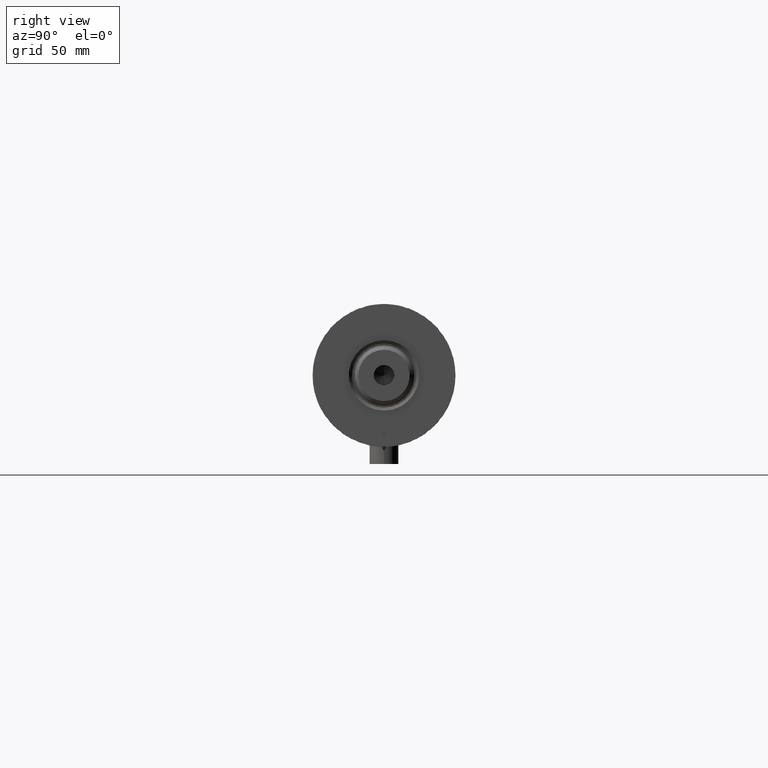
[diagram: clean part render]
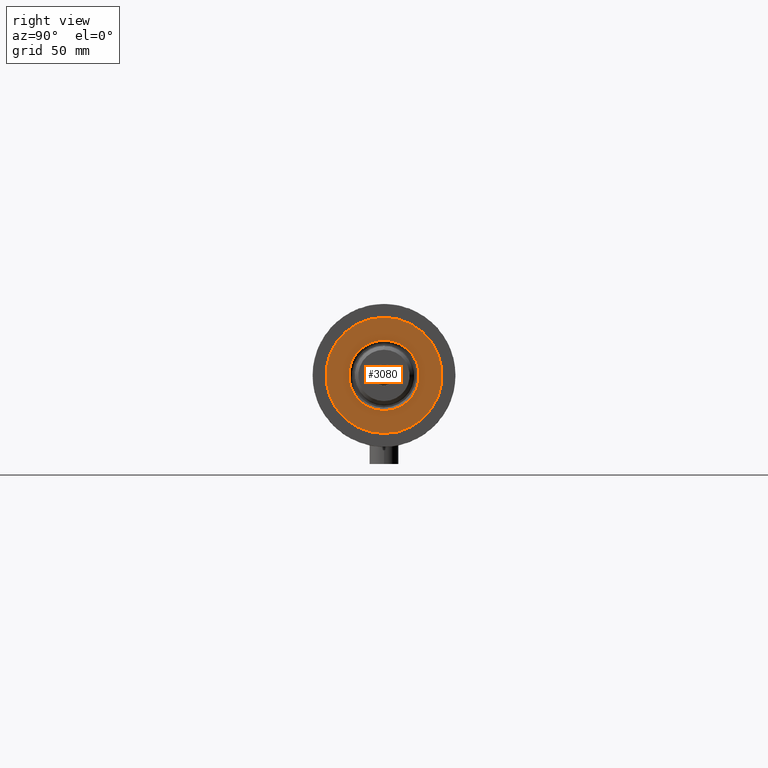
[diagram: same view with one face highlighted and labeled with its STEP entity id]
A machine part, right view. The second image highlights one B-rep face of the part: STEP entity #3080.
In plain terms, the highlighted planar face has unit normal (1, 0, -0).
Its self-contained STEP definition (entity closure, byte-faithful):
#37 = EDGE_CURVE ( 'NONE', #3848, #2977, #3578, .T. ) ;
#512 = DIRECTION ( 'NONE',  ( 0.000000000000000000, 0.000000000000000000, 1.000000000000000000 ) ) ;
#566 = CARTESIAN_POINT ( 'NONE',  ( 0.000000000000000000, 0.000000000000000000, 35.50000000000000711 ) ) ;
#612 = VERTEX_POINT ( 'NONE', #2467 ) ;
#722 = EDGE_CURVE ( 'NONE', #1173, #612, #3119, .T. ) ;
#726 = AXIS2_PLACEMENT_3D ( 'NONE', #995, #2465, #1439 ) ;
#818 = CIRCLE ( 'NONE', #1678, 14.54999999999999361 ) ;
#995 = CARTESIAN_POINT ( 'NONE',  ( 0.000000000000000000, 0.000000000000000000, 35.50000000000000711 ) ) ;
#996 = CARTESIAN_POINT ( 'NONE',  ( 0.000000000000000000, 0.000000000000000000, 35.50000000000000711 ) ) ;
#1113 = CARTESIAN_POINT ( 'NONE',  ( 0.000000000000000000, 0.000000000000000000, 35.50000000000000711 ) ) ;
#1146 = ORIENTED_EDGE ( 'NONE', *, *, #722, .T. ) ;
#1173 = VERTEX_POINT ( 'NONE', #3643 ) ;
#1215 = CIRCLE ( 'NONE', #1297, 24.00000000000000355 ) ;
#1297 = AXIS2_PLACEMENT_3D ( 'NONE', #3823, #512, #4598 ) ;
#1396 = DIRECTION ( 'NONE',  ( 0.000000000000000000, 0.000000000000000000, 1.000000000000000000 ) ) ;
#1439 = DIRECTION ( 'NONE',  ( 1.000000000000000000, 0.000000000000000000, 0.000000000000000000 ) ) ;
#1449 = ORIENTED_EDGE ( 'NONE', *, *, #2854, .T. ) ;
#1466 = FACE_OUTER_BOUND ( 'NONE', #2450, .T. ) ;
#1678 = AXIS2_PLACEMENT_3D ( 'NONE', #566, #3513, #4537 ) ;
#1741 = AXIS2_PLACEMENT_3D ( 'NONE', #996, #4333, #2488 ) ;
#2163 = FACE_BOUND ( 'NONE', #4214, .T. ) ;
#2181 = PLANE ( 'NONE',  #4687 ) ;
#2450 = EDGE_LOOP ( 'NONE', ( #4646, #2472 ) ) ;
#2465 = DIRECTION ( 'NONE',  ( 0.000000000000000000, 0.000000000000000000, 1.000000000000000000 ) ) ;
#2467 = CARTESIAN_POINT ( 'NONE',  ( 14.54999999999999361, 0.000000000000000000, 35.50000000000000711 ) ) ;
#2472 = ORIENTED_EDGE ( 'NONE', *, *, #37, .T. ) ;
#2488 = DIRECTION ( 'NONE',  ( 1.000000000000000000, 0.000000000000000000, 0.000000000000000000 ) ) ;
#2854 = EDGE_CURVE ( 'NONE', #612, #1173, #818, .T. ) ;
#2947 = DIRECTION ( 'NONE',  ( 1.000000000000000000, 0.000000000000000000, -0.000000000000000000 ) ) ;
#2976 = CARTESIAN_POINT ( 'NONE',  ( 24.00000000000000355, 2.939152317953648289E-15, 35.50000000000000711 ) ) ;
#2977 = VERTEX_POINT ( 'NONE', #3662 ) ;
#3080 = ADVANCED_FACE ( 'NONE', ( #2163, #1466 ), #2181, .T. ) ;
#3119 = CIRCLE ( 'NONE', #1741, 14.54999999999999361 ) ;
#3513 = DIRECTION ( 'NONE',  ( -0.000000000000000000, -0.000000000000000000, -1.000000000000000000 ) ) ;
#3578 = CIRCLE ( 'NONE', #726, 24.00000000000000355 ) ;
#3643 = CARTESIAN_POINT ( 'NONE',  ( -14.54999999999999361, 1.781861092759398299E-15, 35.50000000000000711 ) ) ;
#3662 = CARTESIAN_POINT ( 'NONE',  ( -24.00000000000000355, 0.000000000000000000, 35.50000000000000711 ) ) ;
#3823 = CARTESIAN_POINT ( 'NONE',  ( 0.000000000000000000, 0.000000000000000000, 35.50000000000000711 ) ) ;
#3848 = VERTEX_POINT ( 'NONE', #2976 ) ;
#3911 = EDGE_CURVE ( 'NONE', #2977, #3848, #1215, .T. ) ;
#4214 = EDGE_LOOP ( 'NONE', ( #1449, #1146 ) ) ;
#4333 = DIRECTION ( 'NONE',  ( -0.000000000000000000, -0.000000000000000000, -1.000000000000000000 ) ) ;
#4537 = DIRECTION ( 'NONE',  ( 1.000000000000000000, 0.000000000000000000, 0.000000000000000000 ) ) ;
#4598 = DIRECTION ( 'NONE',  ( 1.000000000000000000, 0.000000000000000000, 0.000000000000000000 ) ) ;
#4646 = ORIENTED_EDGE ( 'NONE', *, *, #3911, .T. ) ;
#4687 = AXIS2_PLACEMENT_3D ( 'NONE', #1113, #1396, #2947 ) ;